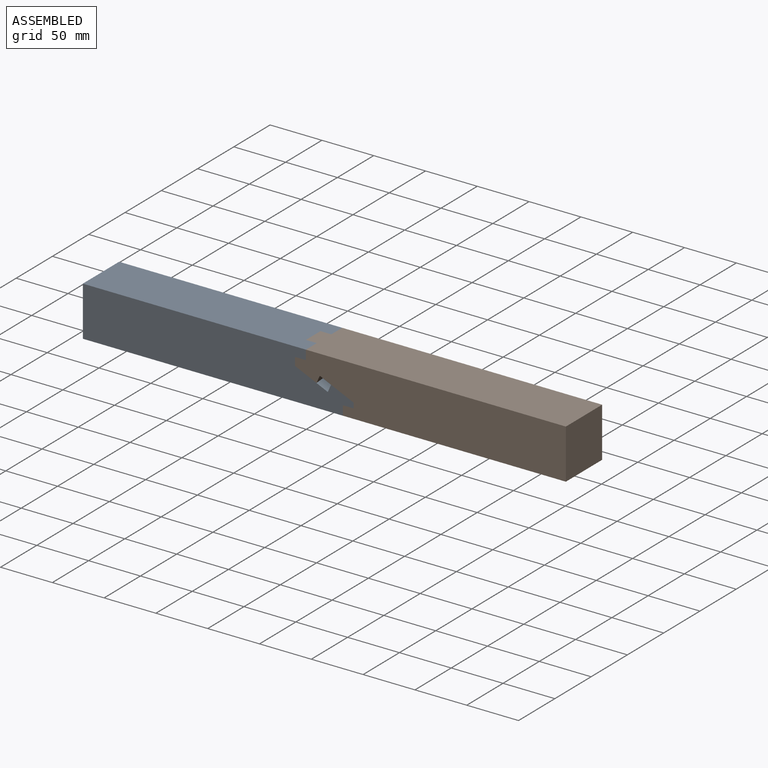
[diagram: assembled view]
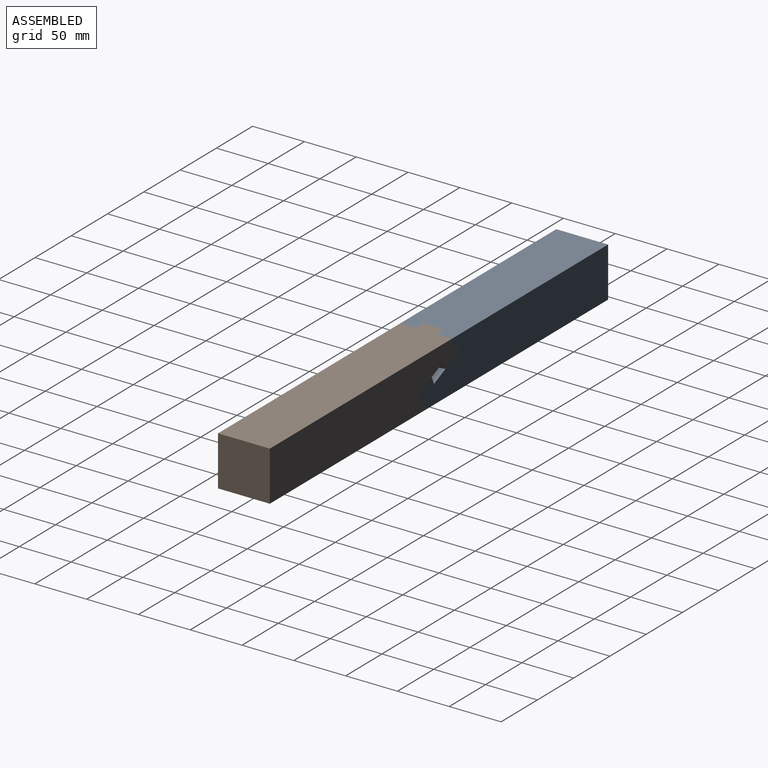
[diagram: assembled view, second angle]
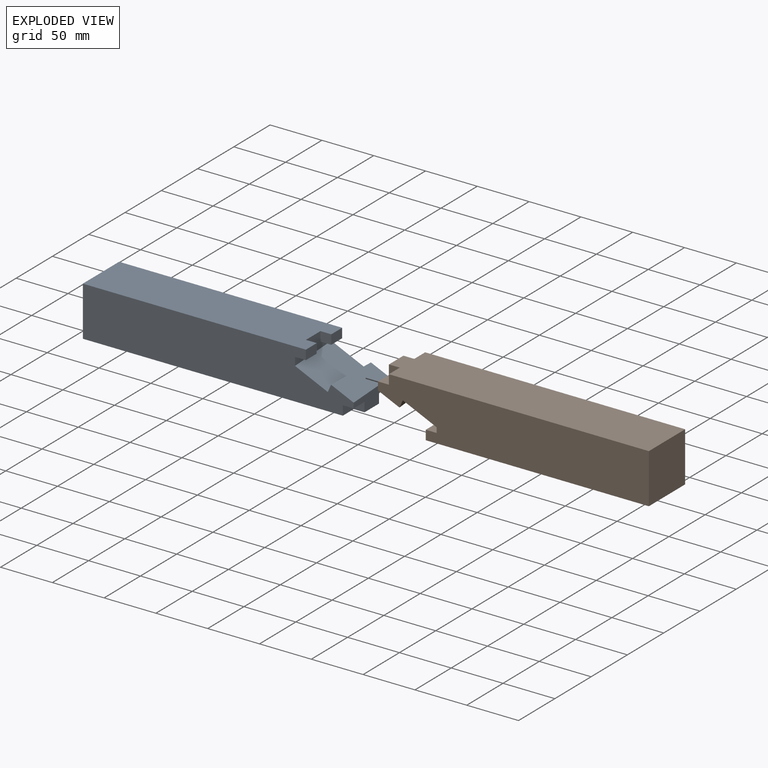
[diagram: exploded view]
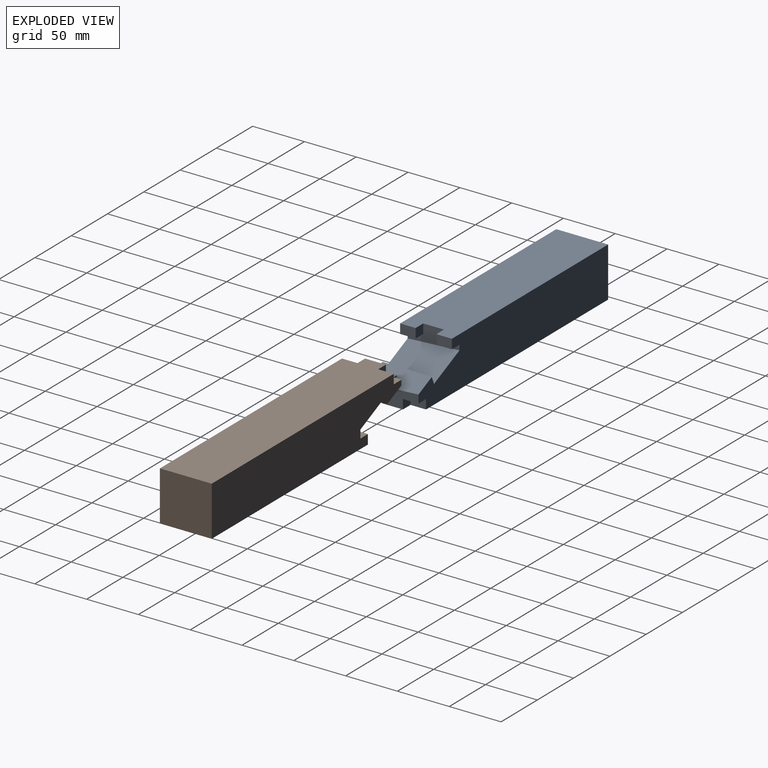
[diagram: exploded view, second angle]
ASSEMBLY  parts=2 mates=3
PART A: 22 faces, bbox 261.4x50x48.1 mm
  f0: plane 50x16.99mm, normal (1,0,0), area 503.5mm2, adj f1,f3,f11,f12,f14,f15,f19,f21
  f1: plane 15x10.47mm, normal (0,0,-1), area 157mm2, adj f0,f2,f12,f14
  f2: plane 15x9.14mm, normal (1,0,0), area 137mm2, adj f1,f3,f12,f14
  f3: plane 215.29x50mm, normal (0,0,1), area 10555.1mm2, adj f0,f2,f4,f12,f14,f16,f19,f21
  f4: plane 50x48.06mm, normal (-1,0,0), area 2403.2mm2, adj f3,f5,f12,f19
  f5: plane 261.4x50mm, normal (0,0,-1), area 12756.2mm2, adj f4,f6,f8,f12,f13,f17,f19,f20
  f6: plane 15x9.14mm, normal (1,0,0), area 137mm2, adj f5,f7,f12,f13
  f7: plane 15x10.47mm, normal (0,0,-1), area 157mm2, adj f6,f8,f12,f13
  f8: plane 50x16.99mm, normal (1,0,0), area 503.5mm2, adj f5,f7,f9,f12,f13,f18,f19,f20
  f9: plane 50x21.77mm, normal (0.41,-0.05,0.91), area 1101.3mm2, adj f8,f10,f12,f19
  f10: plane 50x8.48mm, normal (-0.91,0.05,0.41), area 394.1mm2, adj f9,f11,f12,f19
  f11: plane 50x35.03mm, normal (0.41,-0.05,0.91), area 1829.8mm2, adj f0,f10,f12,f19
  f12: plane 261.4x48.06mm, normal (0,-1,0), area 11080.7mm2, adj f0,f1,f2,f3,f4,f5,f6,f7
  f13: plane 10.47x9.14mm, normal (0,-1,0), area 95.6mm2, adj f5,f6,f7,f8
  f14: plane 10.47x9.14mm, normal (0,1,0), area 95.6mm2, adj f0,f1,f2,f3
  f15: plane 15x10.47mm, normal (0,0,-1), area 157mm2, adj f0,f16,f19,f21
  f16: plane 15x9.14mm, normal (1,0,0), area 137mm2, adj f3,f15,f19,f21
  f17: plane 15x9.14mm, normal (1,0,0), area 137mm2, adj f5,f18,f19,f20
  f18: plane 15x10.47mm, normal (0,0,-1), area 157mm2, adj f8,f17,f19,f20
  f19: plane 261.4x48.06mm, normal (0,1,0), area 11213.5mm2, adj f0,f3,f4,f5,f8,f9,f10,f11
  f20: plane 10.47x9.14mm, normal (0,1,0), area 95.6mm2, adj f5,f8,f17,f18
  f21: plane 10.47x9.14mm, normal (0,-1,0), area 95.6mm2, adj f0,f3,f15,f16
PART B: 22 faces, bbox 261.4x50x48.1 mm
  f0: plane 50x16.99mm, normal (1,0,0), area 503.5mm2, adj f1,f3,f11,f12,f14,f15,f19,f21
  f1: plane 15x10.47mm, normal (0,0,-1), area 157mm2, adj f0,f2,f12,f14
  f2: plane 15x9.14mm, normal (1,0,0), area 137mm2, adj f1,f3,f12,f14
  f3: plane 215.29x50mm, normal (0,0,1), area 10555.1mm2, adj f0,f2,f4,f12,f14,f16,f19,f21
  f4: plane 50x48.06mm, normal (-1,0,0), area 2403.2mm2, adj f3,f5,f12,f19
  f5: plane 261.4x50mm, normal (0,0,-1), area 12756.2mm2, adj f4,f6,f8,f12,f13,f17,f19,f20
  f6: plane 15x9.14mm, normal (1,0,0), area 137mm2, adj f5,f7,f12,f13
  f7: plane 15x10.47mm, normal (0,0,-1), area 157mm2, adj f6,f8,f12,f13
  f8: plane 50x16.99mm, normal (1,0,0), area 503.5mm2, adj f5,f7,f9,f12,f13,f18,f19,f20
  f9: plane 50x20.69mm, normal (0.41,0.05,0.91), area 1101.3mm2, adj f8,f10,f12,f19
  f10: plane 50x10.64mm, normal (-0.91,0.05,0.41), area 394.1mm2, adj f9,f11,f12,f19
  f11: plane 50x33.95mm, normal (0.41,0.05,0.91), area 1829.8mm2, adj f0,f10,f12,f19
  f12: plane 261.4x48.06mm, normal (0,1,0), area 11060.1mm2, adj f0,f1,f2,f3,f4,f5,f6,f7
  f13: plane 10.47x9.14mm, normal (0,1,0), area 95.6mm2, adj f5,f6,f7,f8
  f14: plane 10.47x9.14mm, normal (0,-1,0), area 95.6mm2, adj f0,f1,f2,f3
  f15: plane 15x10.47mm, normal (0,0,-1), area 157mm2, adj f0,f16,f19,f21
  f16: plane 15x9.14mm, normal (1,0,0), area 137mm2, adj f3,f15,f19,f21
  f17: plane 15x9.14mm, normal (1,0,0), area 137mm2, adj f5,f18,f19,f20
  f18: plane 15x10.47mm, normal (0,0,-1), area 157mm2, adj f8,f17,f19,f20
  f19: plane 261.4x48.06mm, normal (0,-1,0), area 11234.1mm2, adj f0,f3,f4,f5,f8,f9,f10,f11
  f20: plane 10.47x9.14mm, normal (0,-1,0), area 95.6mm2, adj f5,f8,f17,f18
  f21: plane 10.47x9.14mm, normal (0,1,0), area 95.6mm2, adj f0,f3,f15,f16
PLACE A at identity fixed
PLACE B rot(axis=(0,-1,0),180deg) t=(0,50,0)mm
MATE parallel A.f2 <-> B.f17  axis (1,0,0) through (-17.82,-17.5,19.46)mm
MATE planar B.f9 <-> A.f11  axis (-0.41,0.05,-0.91) through (-18.27,-0.27,3.93)mm
MATE planar B.f19 <-> A.f12  axis (0,-1,0) through (115.24,-25,1.07)mm
